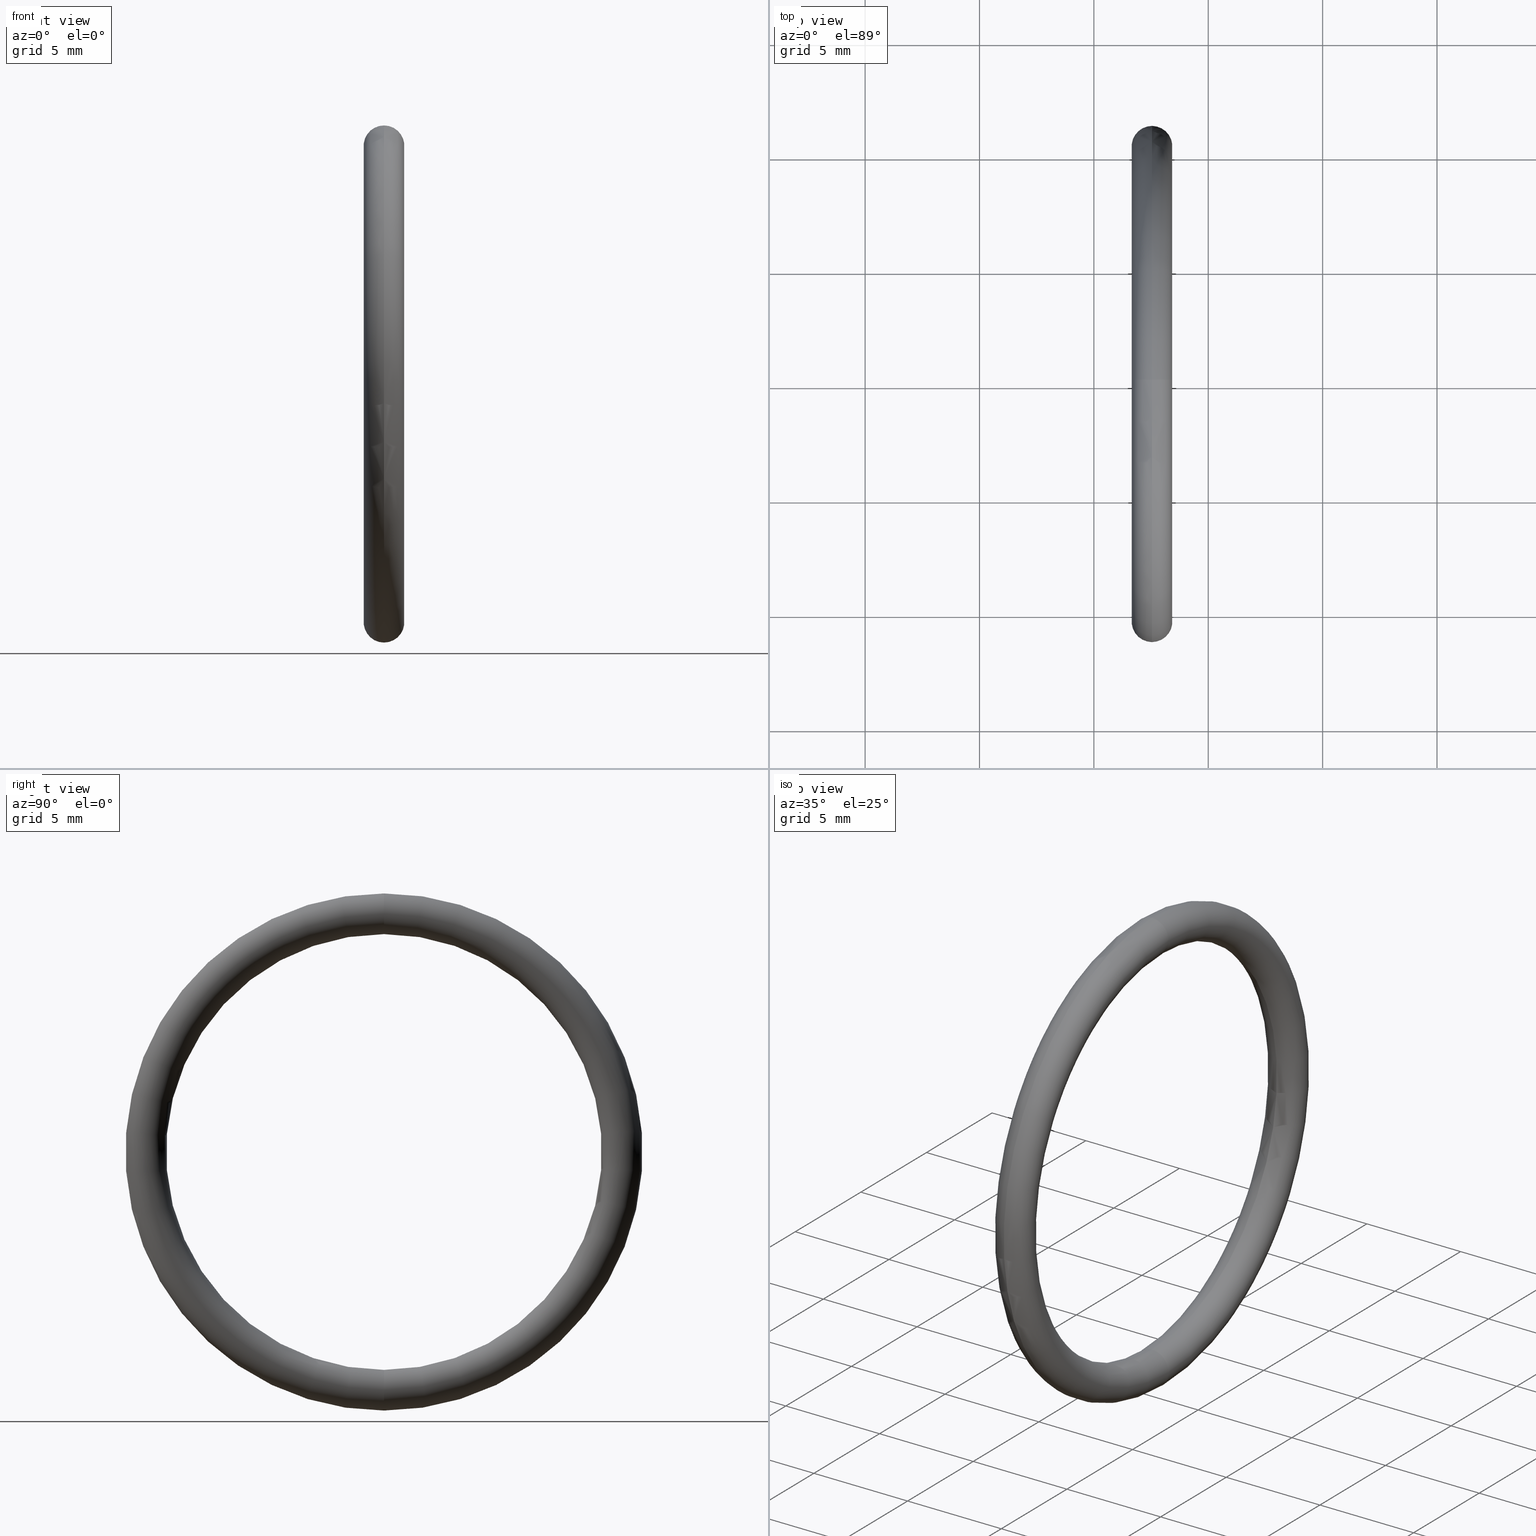
[diagram: canonical four-view strip — front | top / right | iso, engineering-drawing reading convention]
A machine part, canonical four-view strip (front | top / right | iso — engineering-drawing reading convention). The complete STEP part file that produces these views, byte-faithful:
ISO-10303-21;
HEADER;
FILE_DESCRIPTION (( 'STEP AP203' ),
    '1' );
FILE_NAME ('OR-18-VT.STEP',
    '2008-08-18T12:35:27',
    ( 'BSI05' ),
    ( 'BAYSTATE' ),
    'SwSTEP 2.0',
    'SolidWorks 2007',
    '' );
FILE_SCHEMA (( 'CONFIG_CONTROL_DESIGN' ));
ENDSEC;

DATA;
#1 = CARTESIAN_POINT ( 'NONE',  ( 0.1000000000000000600, 5.021051876504148100E-017, -0.4099999999999999800 ) ) ;
#2 = DIRECTION ( 'NONE',  ( 0.0000000000000000000, 0.0000000000000000000, 1.000000000000000000 ) ) ;
#3 = DIRECTION ( 'NONE',  ( -1.000000000000000000, 0.0000000000000000000, 0.0000000000000000000 ) ) ;
#4 = AXIS2_PLACEMENT_3D ( 'NONE', #11, #3, #2 ) ;
#5 = CIRCLE ( 'NONE', #4, 0.3750000000000000600 ) ;
#6 = DIRECTION ( 'NONE',  ( 0.0000000000000000000, 0.0000000000000000000, 1.000000000000000000 ) ) ;
#7 = DIRECTION ( 'NONE',  ( -1.000000000000000000, 0.0000000000000000000, 0.0000000000000000000 ) ) ;
#8 = CARTESIAN_POINT ( 'NONE',  ( 0.1000000000000000600, 0.0000000000000000000, 0.0000000000000000000 ) ) ;
#9 = AXIS2_PLACEMENT_3D ( 'NONE', #8, #7, #6 ) ;
#10 = CIRCLE ( 'NONE', #9, 0.3750000000000000600 ) ;
#11 = CARTESIAN_POINT ( 'NONE',  ( 0.1000000000000000600, 0.0000000000000000000, 0.0000000000000000000 ) ) ;
#12 = ADVANCED_FACE ( 'NONE', ( #95 ), #92, .T. ) ;
#13 = EDGE_LOOP ( 'NONE', ( #31, #30, #105, #106 ) ) ;
#14 = VERTEX_POINT ( 'NONE', #93 ) ;
#15 = ADVANCED_FACE ( 'NONE', ( #88 ), #86, .T. ) ;
#16 = EDGE_CURVE ( 'NONE', #109, #14, #10, .T. ) ;
#17 = ORIENTED_EDGE ( 'NONE', *, *, #16, .F. ) ;
#18 = EDGE_CURVE ( 'NONE', #14, #109, #5, .T. ) ;
#19 = ORIENTED_EDGE ( 'NONE', *, *, #18, .T. ) ;
#20 = ORIENTED_EDGE ( 'NONE', *, *, #21, .T. ) ;
#21 = EDGE_CURVE ( 'NONE', #109, #110, #74, .T. ) ;
#22 = ADVANCED_FACE ( 'NONE', ( #75 ), #68, .T. ) ;
#23 = EDGE_LOOP ( 'NONE', ( #24, #25, #26, #27 ) ) ;
#24 = ORIENTED_EDGE ( 'NONE', *, *, #98, .F. ) ;
#25 = ORIENTED_EDGE ( 'NONE', *, *, #21, .F. ) ;
#26 = ORIENTED_EDGE ( 'NONE', *, *, #16, .T. ) ;
#27 = ORIENTED_EDGE ( 'NONE', *, *, #103, .T. ) ;
#28 = CLOSED_SHELL ( 'NONE', ( #62, #12, #15, #22 ) ) ;
#29 = VERTEX_POINT ( 'NONE', #69 ) ;
#30 = ORIENTED_EDGE ( 'NONE', *, *, #99, .T. ) ;
#31 = ORIENTED_EDGE ( 'NONE', *, *, #100, .F. ) ;
#32 = DIMENSIONAL_EXPONENTS ( 1.000000000000000000, 0.0000000000000000000, 0.0000000000000000000, 0.0000000000000000000, 0.0000000000000000000, 0.0000000000000000000, 0.0000000000000000000 ) ;
#33 =( LENGTH_UNIT ( ) NAMED_UNIT ( * ) SI_UNIT ( $, .METRE. ) );
#34 = CARTESIAN_POINT ( 'NONE',  ( 0.1000000000000000600, 5.449678256205721400E-017, -0.4449999999999999500 ) ) ;
#35 = CARTESIAN_POINT ( 'NONE',  ( 0.1000000000000000600, 4.592425496802574200E-017, -0.3750000000000000600 ) ) ;
#36 = DIRECTION ( 'NONE',  ( 0.0000000000000000000, 0.0000000000000000000, -1.000000000000000000 ) ) ;
#37 = DIRECTION ( 'NONE',  ( 0.0000000000000000000, -1.000000000000000000, 0.0000000000000000000 ) ) ;
#38 = CARTESIAN_POINT ( 'NONE',  ( 0.1000000000000000600, 0.0000000000000000000, 0.4099999999999999800 ) ) ;
#39 = AXIS2_PLACEMENT_3D ( 'NONE', #38, #37, #36 ) ;
#40 = CIRCLE ( 'NONE', #39, 0.03499999999999996900 ) ;
#41 = DIRECTION ( 'NONE',  ( 0.0000000000000000000, 0.0000000000000000000, -1.000000000000000000 ) ) ;
#42 = DIRECTION ( 'NONE',  ( 0.0000000000000000000, -1.000000000000000000, 0.0000000000000000000 ) ) ;
#43 = CARTESIAN_POINT ( 'NONE',  ( 0.1000000000000000600, 0.0000000000000000000, 0.4099999999999999800 ) ) ;
#44 = AXIS2_PLACEMENT_3D ( 'NONE', #43, #42, #41 ) ;
#45 = CIRCLE ( 'NONE', #44, 0.03499999999999996900 ) ;
#46 = DIRECTION ( 'NONE',  ( 0.0000000000000000000, 0.0000000000000000000, 1.000000000000000000 ) ) ;
#47 = DIRECTION ( 'NONE',  ( -1.000000000000000000, 0.0000000000000000000, 0.0000000000000000000 ) ) ;
#48 = CARTESIAN_POINT ( 'NONE',  ( 0.1000000000000000600, 0.0000000000000000000, 0.0000000000000000000 ) ) ;
#49 = AXIS2_PLACEMENT_3D ( 'NONE', #48, #47, #46 ) ;
#50 = CIRCLE ( 'NONE', #49, 0.4449999999999999500 ) ;
#51 = DIRECTION ( 'NONE',  ( 0.0000000000000000000, 0.0000000000000000000, 1.000000000000000000 ) ) ;
#52 = DIRECTION ( 'NONE',  ( -1.000000000000000000, 0.0000000000000000000, 0.0000000000000000000 ) ) ;
#53 = CARTESIAN_POINT ( 'NONE',  ( 0.1000000000000000600, 0.0000000000000000000, 0.0000000000000000000 ) ) ;
#54 = AXIS2_PLACEMENT_3D ( 'NONE', #53, #52, #51 ) ;
#55 = CIRCLE ( 'NONE', #54, 0.4449999999999999500 ) ;
#56 = DIRECTION ( 'NONE',  ( 0.0000000000000000000, 0.0000000000000000000, 1.000000000000000000 ) ) ;
#57 = DIRECTION ( 'NONE',  ( -1.000000000000000000, 0.0000000000000000000, 0.0000000000000000000 ) ) ;
#58 = AXIS2_PLACEMENT_3D ( 'NONE', #76, #57, #56 ) ;
#59 = TOROIDAL_SURFACE ( 'NONE', #58, 0.4099999999999999800, 0.03499999999999998300 ) ;
#60 = EDGE_CURVE ( 'NONE', #110, #109, #81, .T. ) ;
#61 = MANIFOLD_SOLID_BREP ( 'NONE', #28 ) ;
#62 = ADVANCED_FACE ( 'NONE', ( #82 ), #59, .T. ) ;
#63 = EDGE_LOOP ( 'NONE', ( #111, #108, #104, #17 ) ) ;
#64 = PERSON_AND_ORGANIZATION ( #116, #115 ) ;
#65 = DIRECTION ( 'NONE',  ( 0.0000000000000000000, 0.0000000000000000000, 1.000000000000000000 ) ) ;
#66 = DIRECTION ( 'NONE',  ( -1.000000000000000000, 0.0000000000000000000, 0.0000000000000000000 ) ) ;
#67 = AXIS2_PLACEMENT_3D ( 'NONE', #70, #66, #65 ) ;
#68 = TOROIDAL_SURFACE ( 'NONE', #67, 0.4099999999999999800, 0.03499999999999998300 ) ;
#69 = CARTESIAN_POINT ( 'NONE',  ( 0.1000000000000000600, 0.0000000000000000000, 0.4449999999999999500 ) ) ;
#70 = CARTESIAN_POINT ( 'NONE',  ( 0.1000000000000000600, 0.0000000000000000000, 0.0000000000000000000 ) ) ;
#71 = DIRECTION ( 'NONE',  ( 0.0000000000000000000, -1.224646799147354900E-016, 1.000000000000000000 ) ) ;
#72 = DIRECTION ( 'NONE',  ( 0.0000000000000000000, 1.000000000000000000, 1.224646799147353200E-016 ) ) ;
#73 = AXIS2_PLACEMENT_3D ( 'NONE', #1, #72, #71 ) ;
#74 = CIRCLE ( 'NONE', #73, 0.03499999999999996900 ) ;
#75 = FACE_OUTER_BOUND ( 'NONE', #23, .T. ) ;
#76 = CARTESIAN_POINT ( 'NONE',  ( 0.1000000000000000600, 0.0000000000000000000, 0.0000000000000000000 ) ) ;
#77 = DIRECTION ( 'NONE',  ( 0.0000000000000000000, -1.224646799147354900E-016, 1.000000000000000000 ) ) ;
#78 = DIRECTION ( 'NONE',  ( 0.0000000000000000000, 1.000000000000000000, 1.224646799147353200E-016 ) ) ;
#79 = CARTESIAN_POINT ( 'NONE',  ( 0.1000000000000000600, 5.021051876504148100E-017, -0.4099999999999999800 ) ) ;
#80 = AXIS2_PLACEMENT_3D ( 'NONE', #79, #78, #77 ) ;
#81 = CIRCLE ( 'NONE', #80, 0.03499999999999996900 ) ;
#82 = FACE_OUTER_BOUND ( 'NONE', #63, .T. ) ;
#83 = DIRECTION ( 'NONE',  ( 0.0000000000000000000, 0.0000000000000000000, 1.000000000000000000 ) ) ;
#84 = DIRECTION ( 'NONE',  ( -1.000000000000000000, 0.0000000000000000000, 0.0000000000000000000 ) ) ;
#85 = AXIS2_PLACEMENT_3D ( 'NONE', #87, #84, #83 ) ;
#86 = TOROIDAL_SURFACE ( 'NONE', #85, 0.4099999999999999800, 0.03499999999999998300 ) ;
#87 = CARTESIAN_POINT ( 'NONE',  ( 0.1000000000000000600, 0.0000000000000000000, 0.0000000000000000000 ) ) ;
#88 = FACE_OUTER_BOUND ( 'NONE', #107, .T. ) ;
#89 = DIRECTION ( 'NONE',  ( 0.0000000000000000000, 0.0000000000000000000, 1.000000000000000000 ) ) ;
#90 = DIRECTION ( 'NONE',  ( -1.000000000000000000, 0.0000000000000000000, 0.0000000000000000000 ) ) ;
#91 = AXIS2_PLACEMENT_3D ( 'NONE', #94, #90, #89 ) ;
#92 = TOROIDAL_SURFACE ( 'NONE', #91, 0.4099999999999999800, 0.03499999999999998300 ) ;
#93 = CARTESIAN_POINT ( 'NONE',  ( 0.1000000000000000600, 0.0000000000000000000, 0.3750000000000000600 ) ) ;
#94 = CARTESIAN_POINT ( 'NONE',  ( 0.1000000000000000600, 0.0000000000000000000, 0.0000000000000000000 ) ) ;
#95 = FACE_OUTER_BOUND ( 'NONE', #13, .T. ) ;
#96 = PRODUCT_DEFINITION ( 'UNKNOWN', '', #186, #97 ) ;
#97 = DESIGN_CONTEXT ( 'detailed design', #123, 'design' ) ;
#98 = EDGE_CURVE ( 'NONE', #110, #29, #55, .T. ) ;
#99 = EDGE_CURVE ( 'NONE', #29, #110, #50, .T. ) ;
#100 = EDGE_CURVE ( 'NONE', #29, #14, #45, .T. ) ;
#101 = ORIENTED_EDGE ( 'NONE', *, *, #99, .F. ) ;
#102 = ORIENTED_EDGE ( 'NONE', *, *, #103, .F. ) ;
#103 = EDGE_CURVE ( 'NONE', #14, #29, #40, .T. ) ;
#104 = ORIENTED_EDGE ( 'NONE', *, *, #100, .T. ) ;
#105 = ORIENTED_EDGE ( 'NONE', *, *, #60, .T. ) ;
#106 = ORIENTED_EDGE ( 'NONE', *, *, #18, .F. ) ;
#107 = EDGE_LOOP ( 'NONE', ( #101, #102, #19, #20 ) ) ;
#108 = ORIENTED_EDGE ( 'NONE', *, *, #98, .T. ) ;
#109 = VERTEX_POINT ( 'NONE', #35 ) ;
#110 = VERTEX_POINT ( 'NONE', #34 ) ;
#111 = ORIENTED_EDGE ( 'NONE', *, *, #60, .F. ) ;
#112 =( GEOMETRIC_REPRESENTATION_CONTEXT ( 3 ) GLOBAL_UNCERTAINTY_ASSIGNED_CONTEXT ( ( #121 ) ) GLOBAL_UNIT_ASSIGNED_CONTEXT ( ( #130, #113, #120 ) ) REPRESENTATION_CONTEXT ( 'NONE', 'WORKASPACE' ) );
#113 =( NAMED_UNIT ( * ) PLANE_ANGLE_UNIT ( ) SI_UNIT ( $, .RADIAN. ) );
#114 = PERSON_AND_ORGANIZATION ( #116, #115 ) ;
#115 = ORGANIZATION ( 'UNSPECIFIED', 'UNSPECIFIED', '' ) ;
#116 = PERSON ( 'UNSPECIFIED', 'UNSPECIFIED', 'UNSPECIFIED', ('UNSPECIFIED'), ('UNSPECIFIED'), ('UNSPECIFIED') ) ;
#117 = LENGTH_MEASURE_WITH_UNIT ( LENGTH_MEASURE( 0.02539999999999999900 ), #33 );
#118 = AXIS2_PLACEMENT_3D ( 'NONE', #133, #132, #131 ) ;
#119 = ADVANCED_BREP_SHAPE_REPRESENTATION ( 'OR-18-VT', ( #61, #118 ), #112 ) ;
#120 =( NAMED_UNIT ( * ) SI_UNIT ( $, .STERADIAN. ) SOLID_ANGLE_UNIT ( ) );
#121 = UNCERTAINTY_MEASURE_WITH_UNIT (LENGTH_MEASURE( 1.000000000000000100E-005 ), #130, 'distance_accuracy_value', 'NONE');
#122 = APPLICATION_PROTOCOL_DEFINITION ( 'international standard', 'config_control_design', 1994, #123 ) ;
#123 = APPLICATION_CONTEXT ( 'configuration controlled 3d designs of mechanical parts and assemblies' ) ;
#124 = CC_DESIGN_PERSON_AND_ORGANIZATION_ASSIGNMENT ( #114, #125, ( #126 ) ) ;
#125 = PERSON_AND_ORGANIZATION_ROLE ( 'design_owner' ) ;
#126 = PRODUCT ( 'OR-18-VT', 'OR-18-VT', '', ( #127 ) ) ;
#127 = MECHANICAL_CONTEXT ( 'NONE', #129, 'mechanical' ) ;
#128 = APPLICATION_PROTOCOL_DEFINITION ( 'international standard', 'config_control_design', 1994, #129 ) ;
#129 = APPLICATION_CONTEXT ( 'configuration controlled 3d designs of mechanical parts and assemblies' ) ;
#130 =( CONVERSION_BASED_UNIT ( 'INCH', #117 ) LENGTH_UNIT ( ) NAMED_UNIT ( #32 ) );
#131 = DIRECTION ( 'NONE',  ( 1.000000000000000000, 0.0000000000000000000, 0.0000000000000000000 ) ) ;
#132 = DIRECTION ( 'NONE',  ( 0.0000000000000000000, 0.0000000000000000000, 1.000000000000000000 ) ) ;
#133 = CARTESIAN_POINT ( 'NONE',  ( 0.0000000000000000000, 0.0000000000000000000, 0.0000000000000000000 ) ) ;
#134 = LOCAL_TIME ( 18, 5, 27.00000000000000000, #135 ) ;
#135 = COORDINATED_UNIVERSAL_TIME_OFFSET ( 5, 30, .AHEAD. ) ;
#136 = APPROVAL_PERSON_ORGANIZATION ( #64, #138, #137 ) ;
#137 = APPROVAL_ROLE ( '' ) ;
#138 = APPROVAL ( #139, 'UNSPECIFIED' ) ;
#139 = APPROVAL_STATUS ( 'not_yet_approved' ) ;
#140 = CC_DESIGN_PERSON_AND_ORGANIZATION_ASSIGNMENT ( #151, #150, ( #96 ) ) ;
#141 = PERSON_AND_ORGANIZATION_ROLE ( 'design_supplier' ) ;
#142 = PERSON_AND_ORGANIZATION ( #116, #115 ) ;
#143 = CC_DESIGN_DATE_AND_TIME_ASSIGNMENT ( #145, #144, ( #96 ) ) ;
#144 = DATE_TIME_ROLE ( 'creation_date' ) ;
#145 = DATE_AND_TIME ( #180, #181 ) ;
#146 = DATE_AND_TIME ( #147, #148 ) ;
#147 = CALENDAR_DATE ( 2008, 18, 8 ) ;
#148 = LOCAL_TIME ( 18, 5, 27.00000000000000000, #170 ) ;
#149 = DATE_AND_TIME ( #178, #134 ) ;
#150 = PERSON_AND_ORGANIZATION_ROLE ( 'creator' ) ;
#151 = PERSON_AND_ORGANIZATION ( #116, #115 ) ;
#152 = COORDINATED_UNIVERSAL_TIME_OFFSET ( 5, 30, .AHEAD. ) ;
#153 = APPROVAL_PERSON_ORGANIZATION ( #185, #154, #183 ) ;
#154 = APPROVAL ( #184, 'UNSPECIFIED' ) ;
#155 = CC_DESIGN_APPROVAL ( #138, ( #96 ) ) ;
#156 = LOCAL_TIME ( 18, 5, 27.00000000000000000, #157 ) ;
#157 = COORDINATED_UNIVERSAL_TIME_OFFSET ( 5, 30, .AHEAD. ) ;
#158 = APPROVAL_PERSON_ORGANIZATION ( #162, #160, #159 ) ;
#159 = APPROVAL_ROLE ( '' ) ;
#160 = APPROVAL ( #161, 'UNSPECIFIED' ) ;
#161 = APPROVAL_STATUS ( 'not_yet_approved' ) ;
#162 = PERSON_AND_ORGANIZATION ( #116, #115 ) ;
#163 = CC_DESIGN_DATE_AND_TIME_ASSIGNMENT ( #146, #164, ( #173 ) ) ;
#164 = DATE_TIME_ROLE ( 'classification_date' ) ;
#165 = CC_DESIGN_SECURITY_CLASSIFICATION ( #173, ( #186 ) ) ;
#166 = CC_DESIGN_APPROVAL ( #160, ( #173 ) ) ;
#167 = APPROVAL_DATE_TIME ( #168, #160 ) ;
#168 = DATE_AND_TIME ( #169, #156 ) ;
#169 = CALENDAR_DATE ( 2008, 18, 8 ) ;
#170 = COORDINATED_UNIVERSAL_TIME_OFFSET ( 5, 30, .AHEAD. ) ;
#171 = CC_DESIGN_PERSON_AND_ORGANIZATION_ASSIGNMENT ( #187, #172, ( #173 ) ) ;
#172 = PERSON_AND_ORGANIZATION_ROLE ( 'classification_officer' ) ;
#173 = SECURITY_CLASSIFICATION ( '', '', #188 ) ;
#174 = PERSON_AND_ORGANIZATION_ROLE ( 'creator' ) ;
#175 = PERSON_AND_ORGANIZATION ( #116, #115 ) ;
#176 = CC_DESIGN_PERSON_AND_ORGANIZATION_ASSIGNMENT ( #175, #174, ( #186 ) ) ;
#177 = CC_DESIGN_APPROVAL ( #154, ( #186 ) ) ;
#178 = CALENDAR_DATE ( 2008, 18, 8 ) ;
#179 = APPROVAL_DATE_TIME ( #149, #138 ) ;
#180 = CALENDAR_DATE ( 2008, 18, 8 ) ;
#181 = LOCAL_TIME ( 18, 5, 27.00000000000000000, #182 ) ;
#182 = COORDINATED_UNIVERSAL_TIME_OFFSET ( 5, 30, .AHEAD. ) ;
#183 = APPROVAL_ROLE ( '' ) ;
#184 = APPROVAL_STATUS ( 'not_yet_approved' ) ;
#185 = PERSON_AND_ORGANIZATION ( #116, #115 ) ;
#186 = PRODUCT_DEFINITION_FORMATION_WITH_SPECIFIED_SOURCE ( 'ANY', '', #126, .NOT_KNOWN. ) ;
#187 = PERSON_AND_ORGANIZATION ( #116, #115 ) ;
#188 = SECURITY_CLASSIFICATION_LEVEL ( 'unclassified' ) ;
#189 = CC_DESIGN_PERSON_AND_ORGANIZATION_ASSIGNMENT ( #142, #141, ( #186 ) ) ;
#190 = APPROVAL_DATE_TIME ( #191, #154 ) ;
#191 = DATE_AND_TIME ( #192, #193 ) ;
#192 = CALENDAR_DATE ( 2008, 18, 8 ) ;
#193 = LOCAL_TIME ( 18, 5, 27.00000000000000000, #152 ) ;
#194 = SHAPE_DEFINITION_REPRESENTATION ( #195, #119 ) ;
#195 = PRODUCT_DEFINITION_SHAPE ( 'NONE', 'NONE',  #96 ) ;
#196 = PRODUCT_RELATED_PRODUCT_CATEGORY ( 'detail', '', ( #126 ) ) ;
ENDSEC;
END-ISO-10303-21;
